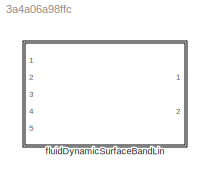
MODEL slx_3a4a06a98ffc
KIND library
CONFIG AbsTol = auto
CONFIG EnableMultiTasking = off
CONFIG FixedStep = auto
CONFIG MaxStep = auto
CONFIG MinStep = auto
CONFIG RelTol = 1e-3
CONFIG SampleTimeConstraint = Unconstrained
CONFIG Solver = VariableStepAuto
CONFIG SolverName = VariableStepAuto
CONFIG StartTime = 0.0
CONFIG StopTime = 10.0
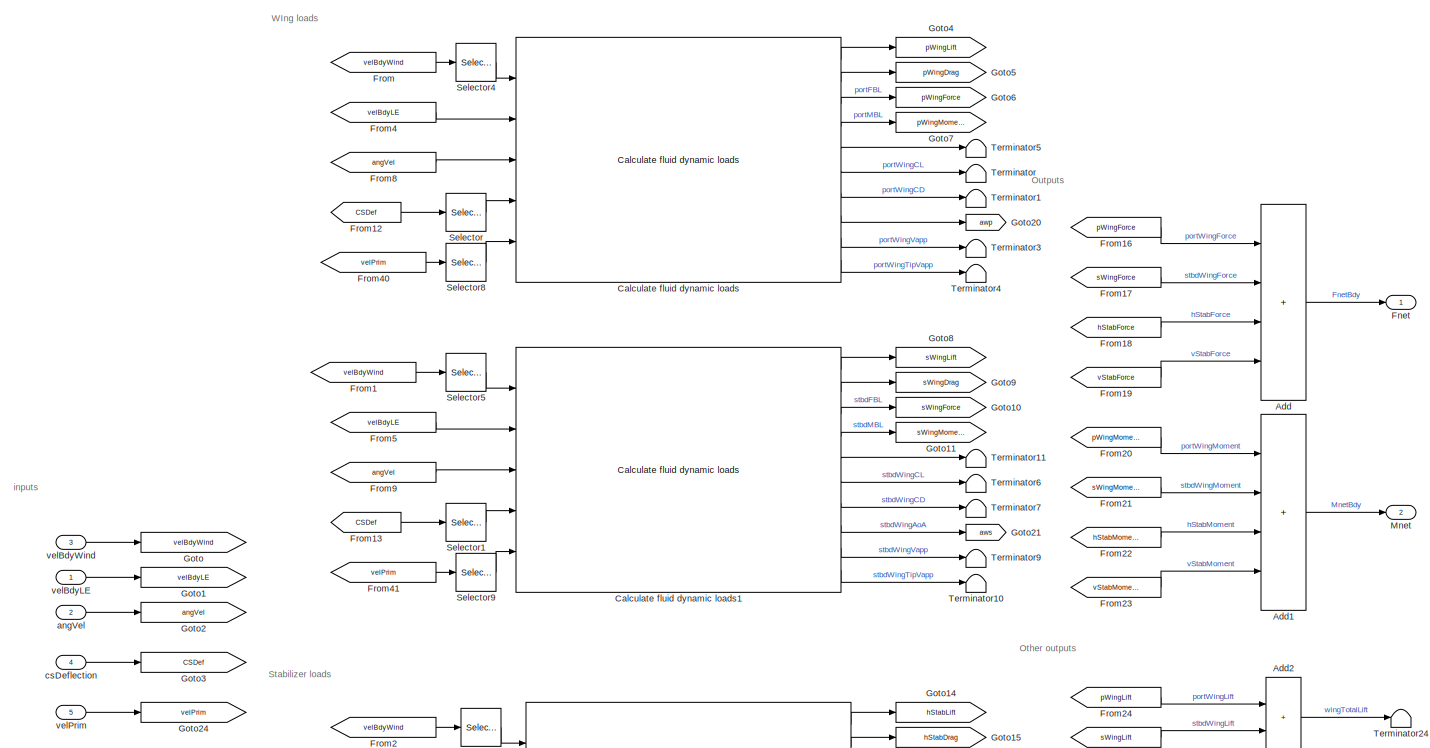
[diagram: fluidDynamicSurfaceBandLin - part 1/2, full width, top band]
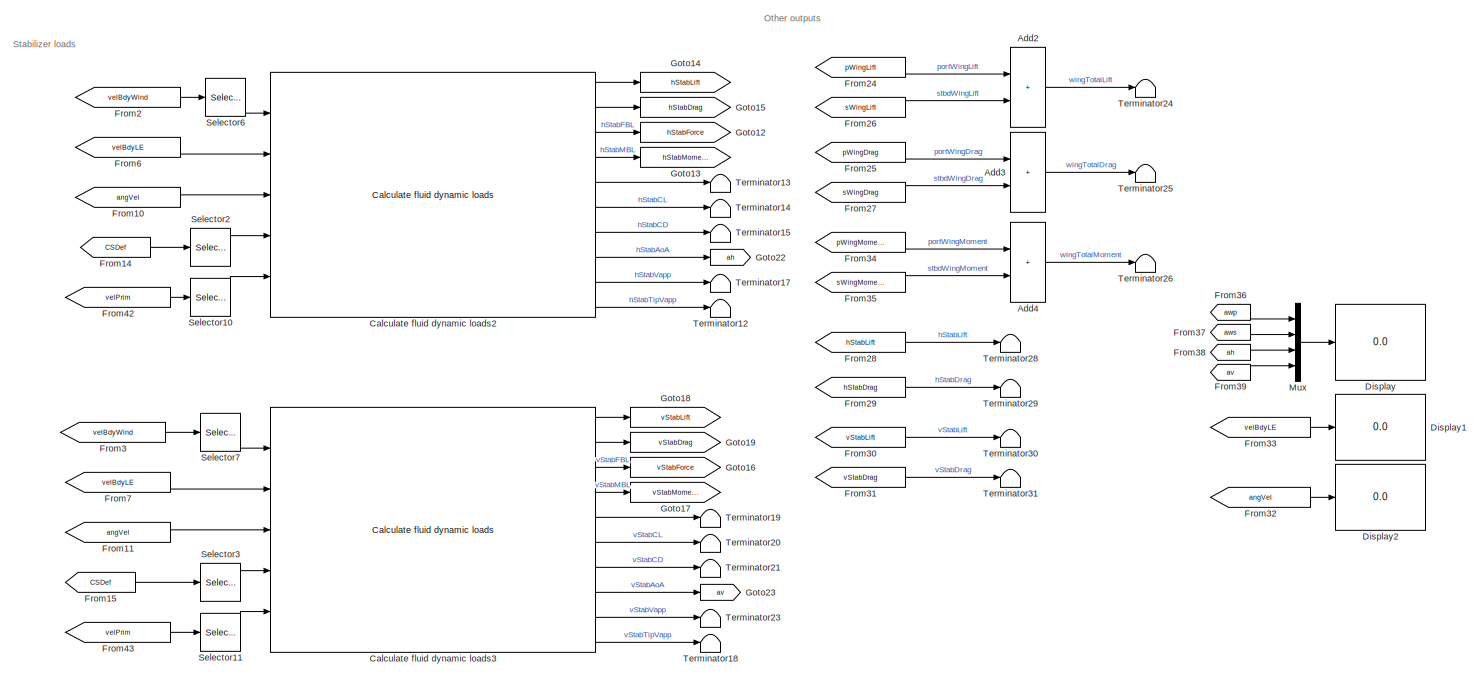
[diagram: fluidDynamicSurfaceBandLin - part 2/2, full width, bottom band]
BLOCK [SubSystem] fluidDynamicSurfaceBandLin
  MinAlgLoopOccurrences = on
  Ports = [5, 2]
  RequestExecContextInheritance = off
BLOCK [Sum] fluidDynamicSurfaceBandLin/Add
  IconShape = rectangular
  Inputs = ++++
  Ports = [4, 1]
BLOCK [Sum] fluidDynamicSurfaceBandLin/Add1
  IconShape = rectangular
  Inputs = ++++
  Ports = [4, 1]
BLOCK [Sum] fluidDynamicSurfaceBandLin/Add2
  IconShape = rectangular
  Ports = [2, 1]
BLOCK [Sum] fluidDynamicSurfaceBandLin/Add3
  IconShape = rectangular
  Ports = [2, 1]
BLOCK [Sum] fluidDynamicSurfaceBandLin/Add4
  IconShape = rectangular
  Ports = [2, 1]
BLOCK [Reference] fluidDynamicSurfaceBandLin/Calculate fluid dynamic loads  REF=calcFluidDynamicLoadsBandLin/Calculate fluid dynamic loads
  Ports = [5, 10]
  SourceBlock = calcFluidDynamicLoadsBandLin/Calculate fluid dynamic loads
BLOCK [Reference] fluidDynamicSurfaceBandLin/Calculate fluid dynamic loads1  REF=calcFluidDynamicLoadsBandLin/Calculate fluid dynamic loads
  Ports = [5, 10]
  SourceBlock = calcFluidDynamicLoadsBandLin/Calculate fluid dynamic loads
BLOCK [Reference] fluidDynamicSurfaceBandLin/Calculate fluid dynamic loads2  REF=calcFluidDynamicLoadsBandLin/Calculate fluid dynamic loads
  Ports = [5, 10]
  SourceBlock = calcFluidDynamicLoadsBandLin/Calculate fluid dynamic loads
BLOCK [Reference] fluidDynamicSurfaceBandLin/Calculate fluid dynamic loads3  REF=calcFluidDynamicLoadsBandLin/Calculate fluid dynamic loads
  Ports = [5, 10]
  SourceBlock = calcFluidDynamicLoadsBandLin/Calculate fluid dynamic loads
BLOCK [Display] fluidDynamicSurfaceBandLin/Display
  Decimation = 1
  Ports = [1]
BLOCK [Display] fluidDynamicSurfaceBandLin/Display1
  Decimation = 1
  Ports = [1]
BLOCK [Display] fluidDynamicSurfaceBandLin/Display2
  Decimation = 1
  Ports = [1]
BLOCK [Outport] fluidDynamicSurfaceBandLin/Fnet
BLOCK [From] fluidDynamicSurfaceBandLin/From
  GotoTag = velBdyWind
BLOCK [From] fluidDynamicSurfaceBandLin/From1
  GotoTag = velBdyWind
BLOCK [From] fluidDynamicSurfaceBandLin/From10
  GotoTag = angVel
BLOCK [From] fluidDynamicSurfaceBandLin/From11
  GotoTag = angVel
BLOCK [From] fluidDynamicSurfaceBandLin/From12
  GotoTag = CSDef
BLOCK [From] fluidDynamicSurfaceBandLin/From13
  GotoTag = CSDef
BLOCK [From] fluidDynamicSurfaceBandLin/From14
  GotoTag = CSDef
BLOCK [From] fluidDynamicSurfaceBandLin/From15
  GotoTag = CSDef
BLOCK [From] fluidDynamicSurfaceBandLin/From16
  GotoTag = pWingForce
BLOCK [From] fluidDynamicSurfaceBandLin/From17
  GotoTag = sWingForce
BLOCK [From] fluidDynamicSurfaceBandLin/From18
  GotoTag = hStabForce
BLOCK [From] fluidDynamicSurfaceBandLin/From19
  GotoTag = vStabForce
BLOCK [From] fluidDynamicSurfaceBandLin/From2
  GotoTag = velBdyWind
BLOCK [From] fluidDynamicSurfaceBandLin/From20
  GotoTag = pWingMoment
BLOCK [From] fluidDynamicSurfaceBandLin/From21
  GotoTag = sWingMoment
BLOCK [From] fluidDynamicSurfaceBandLin/From22
  GotoTag = hStabMoment
BLOCK [From] fluidDynamicSurfaceBandLin/From23
  GotoTag = vStabMoment
BLOCK [From] fluidDynamicSurfaceBandLin/From24
  GotoTag = pWingLift
BLOCK [From] fluidDynamicSurfaceBandLin/From25
  GotoTag = pWingDrag
BLOCK [From] fluidDynamicSurfaceBandLin/From26
  GotoTag = sWingLift
BLOCK [From] fluidDynamicSurfaceBandLin/From27
  GotoTag = sWingDrag
BLOCK [From] fluidDynamicSurfaceBandLin/From28
  GotoTag = hStabLift
BLOCK [From] fluidDynamicSurfaceBandLin/From29
  GotoTag = hStabDrag
BLOCK [From] fluidDynamicSurfaceBandLin/From3
  GotoTag = velBdyWind
BLOCK [From] fluidDynamicSurfaceBandLin/From30
  GotoTag = vStabLift
BLOCK [From] fluidDynamicSurfaceBandLin/From31
  GotoTag = vStabDrag
BLOCK [From] fluidDynamicSurfaceBandLin/From32
  GotoTag = angVel
BLOCK [From] fluidDynamicSurfaceBandLin/From33
  GotoTag = velBdyLE
BLOCK [From] fluidDynamicSurfaceBandLin/From34
  GotoTag = pWingMoment
BLOCK [From] fluidDynamicSurfaceBandLin/From35
  GotoTag = sWingMoment
BLOCK [From] fluidDynamicSurfaceBandLin/From36
  GotoTag = awp
BLOCK [From] fluidDynamicSurfaceBandLin/From37
  GotoTag = aws
BLOCK [From] fluidDynamicSurfaceBandLin/From38
  GotoTag = ah
BLOCK [From] fluidDynamicSurfaceBandLin/From39
  GotoTag = av
BLOCK [From] fluidDynamicSurfaceBandLin/From4
  GotoTag = velBdyLE
BLOCK [From] fluidDynamicSurfaceBandLin/From40
  GotoTag = velPrim
BLOCK [From] fluidDynamicSurfaceBandLin/From41
  GotoTag = velPrim
BLOCK [From] fluidDynamicSurfaceBandLin/From42
  GotoTag = velPrim
BLOCK [From] fluidDynamicSurfaceBandLin/From43
  GotoTag = velPrim
BLOCK [From] fluidDynamicSurfaceBandLin/From5
  GotoTag = velBdyLE
BLOCK [From] fluidDynamicSurfaceBandLin/From6
  GotoTag = velBdyLE
BLOCK [From] fluidDynamicSurfaceBandLin/From7
  GotoTag = velBdyLE
BLOCK [From] fluidDynamicSurfaceBandLin/From8
  GotoTag = angVel
BLOCK [From] fluidDynamicSurfaceBandLin/From9
  GotoTag = angVel
BLOCK [Goto] fluidDynamicSurfaceBandLin/Goto
  GotoTag = velBdyWind
BLOCK [Goto] fluidDynamicSurfaceBandLin/Goto1
  GotoTag = velBdyLE
BLOCK [Goto] fluidDynamicSurfaceBandLin/Goto10
  GotoTag = sWingForce
BLOCK [Goto] fluidDynamicSurfaceBandLin/Goto11
  GotoTag = sWingMoment
BLOCK [Goto] fluidDynamicSurfaceBandLin/Goto12
  GotoTag = hStabForce
BLOCK [Goto] fluidDynamicSurfaceBandLin/Goto13
  GotoTag = hStabMoment
BLOCK [Goto] fluidDynamicSurfaceBandLin/Goto14
  GotoTag = hStabLift
BLOCK [Goto] fluidDynamicSurfaceBandLin/Goto15
  GotoTag = hStabDrag
BLOCK [Goto] fluidDynamicSurfaceBandLin/Goto16
  GotoTag = vStabForce
BLOCK [Goto] fluidDynamicSurfaceBandLin/Goto17
  GotoTag = vStabMoment
BLOCK [Goto] fluidDynamicSurfaceBandLin/Goto18
  GotoTag = vStabLift
BLOCK [Goto] fluidDynamicSurfaceBandLin/Goto19
  GotoTag = vStabDrag
BLOCK [Goto] fluidDynamicSurfaceBandLin/Goto2
  GotoTag = angVel
BLOCK [Goto] fluidDynamicSurfaceBandLin/Goto20
  GotoTag = awp
BLOCK [Goto] fluidDynamicSurfaceBandLin/Goto21
  GotoTag = aws
BLOCK [Goto] fluidDynamicSurfaceBandLin/Goto22
  GotoTag = ah
BLOCK [Goto] fluidDynamicSurfaceBandLin/Goto23
  GotoTag = av
BLOCK [Goto] fluidDynamicSurfaceBandLin/Goto24
  GotoTag = velPrim
BLOCK [Goto] fluidDynamicSurfaceBandLin/Goto3
  GotoTag = CSDef
BLOCK [Goto] fluidDynamicSurfaceBandLin/Goto4
  GotoTag = pWingLift
BLOCK [Goto] fluidDynamicSurfaceBandLin/Goto5
  GotoTag = pWingDrag
BLOCK [Goto] fluidDynamicSurfaceBandLin/Goto6
  GotoTag = pWingForce
BLOCK [Goto] fluidDynamicSurfaceBandLin/Goto7
  GotoTag = pWingMoment
BLOCK [Goto] fluidDynamicSurfaceBandLin/Goto8
  GotoTag = sWingLift
BLOCK [Goto] fluidDynamicSurfaceBandLin/Goto9
  GotoTag = sWingDrag
BLOCK [Outport] fluidDynamicSurfaceBandLin/Mnet
  Port = 2
BLOCK [Mux] fluidDynamicSurfaceBandLin/Mux
  DisplayOption = bar
  Ports = [4, 1]
BLOCK [Selector] fluidDynamicSurfaceBandLin/Selector
  IndexOptions = Index vector (dialog)
  Indices = 1
  InputPortWidth = 4
  OutputSizes = 1
  Ports = [1, 1]
BLOCK [Selector] fluidDynamicSurfaceBandLin/Selector1
  IndexOptions = Index vector (dialog)
  Indices = 2
  InputPortWidth = 4
  OutputSizes = 1
  Ports = [1, 1]
BLOCK [Selector] fluidDynamicSurfaceBandLin/Selector10
  IndexOptions = Select all,Index vector (dialog)
  Indices = 1,3
  InputPortWidth = 4
  NumberOfDimensions = 2
  OutputSizes = 1,1
  Ports = [1, 1]
BLOCK [Selector] fluidDynamicSurfaceBandLin/Selector11
  IndexOptions = Select all,Index vector (dialog)
  Indices = 1,4
  InputPortWidth = 4
  NumberOfDimensions = 2
  OutputSizes = 1,1
  Ports = [1, 1]
BLOCK [Selector] fluidDynamicSurfaceBandLin/Selector2
  IndexOptions = Index vector (dialog)
  Indices = 3
  InputPortWidth = 4
  OutputSizes = 1
  Ports = [1, 1]
BLOCK [Selector] fluidDynamicSurfaceBandLin/Selector3
  IndexOptions = Index vector (dialog)
  Indices = 4
  InputPortWidth = 4
  OutputSizes = 1
  Ports = [1, 1]
BLOCK [Selector] fluidDynamicSurfaceBandLin/Selector4
  IndexOptions = Select all,Index vector (dialog)
  Indices = 1,1
  InputPortWidth = 4
  NumberOfDimensions = 2
  OutputSizes = 1,1
  Ports = [1, 1]
BLOCK [Selector] fluidDynamicSurfaceBandLin/Selector5
  IndexOptions = Select all,Index vector (dialog)
  Indices = 1,2
  InputPortWidth = 4
  NumberOfDimensions = 2
  OutputSizes = 1,1
  Ports = [1, 1]
BLOCK [Selector] fluidDynamicSurfaceBandLin/Selector6
  IndexOptions = Select all,Index vector (dialog)
  Indices = 1,3
  InputPortWidth = 4
  NumberOfDimensions = 2
  OutputSizes = 1,1
  Ports = [1, 1]
BLOCK [Selector] fluidDynamicSurfaceBandLin/Selector7
  IndexOptions = Select all,Index vector (dialog)
  Indices = 1,4
  InputPortWidth = 4
  NumberOfDimensions = 2
  OutputSizes = 1,1
  Ports = [1, 1]
BLOCK [Selector] fluidDynamicSurfaceBandLin/Selector8
  IndexOptions = Select all,Index vector (dialog)
  Indices = 1,1
  InputPortWidth = 4
  NumberOfDimensions = 2
  OutputSizes = 1,1
  Ports = [1, 1]
BLOCK [Selector] fluidDynamicSurfaceBandLin/Selector9
  IndexOptions = Select all,Index vector (dialog)
  Indices = 1,2
  InputPortWidth = 4
  NumberOfDimensions = 2
  OutputSizes = 1,1
  Ports = [1, 1]
BLOCK [Terminator] fluidDynamicSurfaceBandLin/Terminator
BLOCK [Terminator] fluidDynamicSurfaceBandLin/Terminator1
BLOCK [Terminator] fluidDynamicSurfaceBandLin/Terminator10
BLOCK [Terminator] fluidDynamicSurfaceBandLin/Terminator11
BLOCK [Terminator] fluidDynamicSurfaceBandLin/Terminator12
BLOCK [Terminator] fluidDynamicSurfaceBandLin/Terminator13
BLOCK [Terminator] fluidDynamicSurfaceBandLin/Terminator14
BLOCK [Terminator] fluidDynamicSurfaceBandLin/Terminator15
BLOCK [Terminator] fluidDynamicSurfaceBandLin/Terminator17
BLOCK [Terminator] fluidDynamicSurfaceBandLin/Terminator18
BLOCK [Terminator] fluidDynamicSurfaceBandLin/Terminator19
BLOCK [Terminator] fluidDynamicSurfaceBandLin/Terminator20
BLOCK [Terminator] fluidDynamicSurfaceBandLin/Terminator21
BLOCK [Terminator] fluidDynamicSurfaceBandLin/Terminator23
BLOCK [Terminator] fluidDynamicSurfaceBandLin/Terminator24
BLOCK [Terminator] fluidDynamicSurfaceBandLin/Terminator25
BLOCK [Terminator] fluidDynamicSurfaceBandLin/Terminator26
BLOCK [Terminator] fluidDynamicSurfaceBandLin/Terminator28
BLOCK [Terminator] fluidDynamicSurfaceBandLin/Terminator29
BLOCK [Terminator] fluidDynamicSurfaceBandLin/Terminator3
BLOCK [Terminator] fluidDynamicSurfaceBandLin/Terminator30
BLOCK [Terminator] fluidDynamicSurfaceBandLin/Terminator31
BLOCK [Terminator] fluidDynamicSurfaceBandLin/Terminator4
BLOCK [Terminator] fluidDynamicSurfaceBandLin/Terminator5
BLOCK [Terminator] fluidDynamicSurfaceBandLin/Terminator6
BLOCK [Terminator] fluidDynamicSurfaceBandLin/Terminator7
BLOCK [Terminator] fluidDynamicSurfaceBandLin/Terminator9
BLOCK [Inport] fluidDynamicSurfaceBandLin/angVel
  Port = 2
BLOCK [Inport] fluidDynamicSurfaceBandLin/csDeflection
  Port = 4
BLOCK [Inport] fluidDynamicSurfaceBandLin/velBdyLE
BLOCK [Inport] fluidDynamicSurfaceBandLin/velBdyWind
  Port = 3
BLOCK [Inport] fluidDynamicSurfaceBandLin/velPrim
  Port = 5
ANNOTATION fluidDynamicSurfaceBandLin: Other outputs
ANNOTATION fluidDynamicSurfaceBandLin: Outputs
ANNOTATION fluidDynamicSurfaceBandLin: Stabilizer loads
ANNOTATION fluidDynamicSurfaceBandLin: WIng loads
ANNOTATION fluidDynamicSurfaceBandLin: inputs
LINE fluidDynamicSurfaceBandLin/Add1:1 -> fluidDynamicSurfaceBandLin/Mnet:1
LINE fluidDynamicSurfaceBandLin/Add2:1 -> fluidDynamicSurfaceBandLin/Terminator24:1
LINE fluidDynamicSurfaceBandLin/Add3:1 -> fluidDynamicSurfaceBandLin/Terminator25:1
LINE fluidDynamicSurfaceBandLin/Add4:1 -> fluidDynamicSurfaceBandLin/Terminator26:1
LINE fluidDynamicSurfaceBandLin/Add:1 -> fluidDynamicSurfaceBandLin/Fnet:1
LINE fluidDynamicSurfaceBandLin/Calculate fluid dynamic loads1:1 -> fluidDynamicSurfaceBandLin/Goto8:1
LINE fluidDynamicSurfaceBandLin/Calculate fluid dynamic loads1:10 -> fluidDynamicSurfaceBandLin/Terminator10:1
LINE fluidDynamicSurfaceBandLin/Calculate fluid dynamic loads1:2 -> fluidDynamicSurfaceBandLin/Goto9:1
LINE fluidDynamicSurfaceBandLin/Calculate fluid dynamic loads1:3 -> fluidDynamicSurfaceBandLin/Goto10:1
LINE fluidDynamicSurfaceBandLin/Calculate fluid dynamic loads1:4 -> fluidDynamicSurfaceBandLin/Goto11:1
LINE fluidDynamicSurfaceBandLin/Calculate fluid dynamic loads1:5 -> fluidDynamicSurfaceBandLin/Terminator11:1
LINE fluidDynamicSurfaceBandLin/Calculate fluid dynamic loads1:6 -> fluidDynamicSurfaceBandLin/Terminator6:1
LINE fluidDynamicSurfaceBandLin/Calculate fluid dynamic loads1:7 -> fluidDynamicSurfaceBandLin/Terminator7:1
LINE fluidDynamicSurfaceBandLin/Calculate fluid dynamic loads1:8 -> fluidDynamicSurfaceBandLin/Goto21:1
LINE fluidDynamicSurfaceBandLin/Calculate fluid dynamic loads1:9 -> fluidDynamicSurfaceBandLin/Terminator9:1
LINE fluidDynamicSurfaceBandLin/Calculate fluid dynamic loads2:1 -> fluidDynamicSurfaceBandLin/Goto14:1
LINE fluidDynamicSurfaceBandLin/Calculate fluid dynamic loads2:10 -> fluidDynamicSurfaceBandLin/Terminator12:1
LINE fluidDynamicSurfaceBandLin/Calculate fluid dynamic loads2:2 -> fluidDynamicSurfaceBandLin/Goto15:1
LINE fluidDynamicSurfaceBandLin/Calculate fluid dynamic loads2:3 -> fluidDynamicSurfaceBandLin/Goto12:1
LINE fluidDynamicSurfaceBandLin/Calculate fluid dynamic loads2:4 -> fluidDynamicSurfaceBandLin/Goto13:1
LINE fluidDynamicSurfaceBandLin/Calculate fluid dynamic loads2:5 -> fluidDynamicSurfaceBandLin/Terminator13:1
LINE fluidDynamicSurfaceBandLin/Calculate fluid dynamic loads2:6 -> fluidDynamicSurfaceBandLin/Terminator14:1
LINE fluidDynamicSurfaceBandLin/Calculate fluid dynamic loads2:7 -> fluidDynamicSurfaceBandLin/Terminator15:1
LINE fluidDynamicSurfaceBandLin/Calculate fluid dynamic loads2:8 -> fluidDynamicSurfaceBandLin/Goto22:1
LINE fluidDynamicSurfaceBandLin/Calculate fluid dynamic loads2:9 -> fluidDynamicSurfaceBandLin/Terminator17:1
LINE fluidDynamicSurfaceBandLin/Calculate fluid dynamic loads3:1 -> fluidDynamicSurfaceBandLin/Goto18:1
LINE fluidDynamicSurfaceBandLin/Calculate fluid dynamic loads3:10 -> fluidDynamicSurfaceBandLin/Terminator18:1
LINE fluidDynamicSurfaceBandLin/Calculate fluid dynamic loads3:2 -> fluidDynamicSurfaceBandLin/Goto19:1
LINE fluidDynamicSurfaceBandLin/Calculate fluid dynamic loads3:3 -> fluidDynamicSurfaceBandLin/Goto16:1
LINE fluidDynamicSurfaceBandLin/Calculate fluid dynamic loads3:4 -> fluidDynamicSurfaceBandLin/Goto17:1
LINE fluidDynamicSurfaceBandLin/Calculate fluid dynamic loads3:5 -> fluidDynamicSurfaceBandLin/Terminator19:1
LINE fluidDynamicSurfaceBandLin/Calculate fluid dynamic loads3:6 -> fluidDynamicSurfaceBandLin/Terminator20:1
LINE fluidDynamicSurfaceBandLin/Calculate fluid dynamic loads3:7 -> fluidDynamicSurfaceBandLin/Terminator21:1
LINE fluidDynamicSurfaceBandLin/Calculate fluid dynamic loads3:8 -> fluidDynamicSurfaceBandLin/Goto23:1
LINE fluidDynamicSurfaceBandLin/Calculate fluid dynamic loads3:9 -> fluidDynamicSurfaceBandLin/Terminator23:1
LINE fluidDynamicSurfaceBandLin/Calculate fluid dynamic loads:1 -> fluidDynamicSurfaceBandLin/Goto4:1
LINE fluidDynamicSurfaceBandLin/Calculate fluid dynamic loads:10 -> fluidDynamicSurfaceBandLin/Terminator4:1
LINE fluidDynamicSurfaceBandLin/Calculate fluid dynamic loads:2 -> fluidDynamicSurfaceBandLin/Goto5:1
LINE fluidDynamicSurfaceBandLin/Calculate fluid dynamic loads:3 -> fluidDynamicSurfaceBandLin/Goto6:1
LINE fluidDynamicSurfaceBandLin/Calculate fluid dynamic loads:4 -> fluidDynamicSurfaceBandLin/Goto7:1
LINE fluidDynamicSurfaceBandLin/Calculate fluid dynamic loads:5 -> fluidDynamicSurfaceBandLin/Terminator5:1
LINE fluidDynamicSurfaceBandLin/Calculate fluid dynamic loads:6 -> fluidDynamicSurfaceBandLin/Terminator:1
LINE fluidDynamicSurfaceBandLin/Calculate fluid dynamic loads:7 -> fluidDynamicSurfaceBandLin/Terminator1:1
LINE fluidDynamicSurfaceBandLin/Calculate fluid dynamic loads:8 -> fluidDynamicSurfaceBandLin/Goto20:1
LINE fluidDynamicSurfaceBandLin/Calculate fluid dynamic loads:9 -> fluidDynamicSurfaceBandLin/Terminator3:1
LINE fluidDynamicSurfaceBandLin/From10:1 -> fluidDynamicSurfaceBandLin/Calculate fluid dynamic loads2:3
LINE fluidDynamicSurfaceBandLin/From11:1 -> fluidDynamicSurfaceBandLin/Calculate fluid dynamic loads3:3
LINE fluidDynamicSurfaceBandLin/From12:1 -> fluidDynamicSurfaceBandLin/Selector:1
LINE fluidDynamicSurfaceBandLin/From13:1 -> fluidDynamicSurfaceBandLin/Selector1:1
LINE fluidDynamicSurfaceBandLin/From14:1 -> fluidDynamicSurfaceBandLin/Selector2:1
LINE fluidDynamicSurfaceBandLin/From15:1 -> fluidDynamicSurfaceBandLin/Selector3:1
LINE fluidDynamicSurfaceBandLin/From16:1 -> fluidDynamicSurfaceBandLin/Add:1
LINE fluidDynamicSurfaceBandLin/From17:1 -> fluidDynamicSurfaceBandLin/Add:2
LINE fluidDynamicSurfaceBandLin/From18:1 -> fluidDynamicSurfaceBandLin/Add:3
LINE fluidDynamicSurfaceBandLin/From19:1 -> fluidDynamicSurfaceBandLin/Add:4
LINE fluidDynamicSurfaceBandLin/From1:1 -> fluidDynamicSurfaceBandLin/Selector5:1
LINE fluidDynamicSurfaceBandLin/From20:1 -> fluidDynamicSurfaceBandLin/Add1:1
LINE fluidDynamicSurfaceBandLin/From21:1 -> fluidDynamicSurfaceBandLin/Add1:2
LINE fluidDynamicSurfaceBandLin/From22:1 -> fluidDynamicSurfaceBandLin/Add1:3
LINE fluidDynamicSurfaceBandLin/From23:1 -> fluidDynamicSurfaceBandLin/Add1:4
LINE fluidDynamicSurfaceBandLin/From24:1 -> fluidDynamicSurfaceBandLin/Add2:1
LINE fluidDynamicSurfaceBandLin/From25:1 -> fluidDynamicSurfaceBandLin/Add3:1
LINE fluidDynamicSurfaceBandLin/From26:1 -> fluidDynamicSurfaceBandLin/Add2:2
LINE fluidDynamicSurfaceBandLin/From27:1 -> fluidDynamicSurfaceBandLin/Add3:2
LINE fluidDynamicSurfaceBandLin/From28:1 -> fluidDynamicSurfaceBandLin/Terminator28:1
LINE fluidDynamicSurfaceBandLin/From29:1 -> fluidDynamicSurfaceBandLin/Terminator29:1
LINE fluidDynamicSurfaceBandLin/From2:1 -> fluidDynamicSurfaceBandLin/Selector6:1
LINE fluidDynamicSurfaceBandLin/From30:1 -> fluidDynamicSurfaceBandLin/Terminator30:1
LINE fluidDynamicSurfaceBandLin/From31:1 -> fluidDynamicSurfaceBandLin/Terminator31:1
LINE fluidDynamicSurfaceBandLin/From32:1 -> fluidDynamicSurfaceBandLin/Display2:1
LINE fluidDynamicSurfaceBandLin/From33:1 -> fluidDynamicSurfaceBandLin/Display1:1
LINE fluidDynamicSurfaceBandLin/From34:1 -> fluidDynamicSurfaceBandLin/Add4:1
LINE fluidDynamicSurfaceBandLin/From35:1 -> fluidDynamicSurfaceBandLin/Add4:2
LINE fluidDynamicSurfaceBandLin/From36:1 -> fluidDynamicSurfaceBandLin/Mux:1
LINE fluidDynamicSurfaceBandLin/From37:1 -> fluidDynamicSurfaceBandLin/Mux:2
LINE fluidDynamicSurfaceBandLin/From38:1 -> fluidDynamicSurfaceBandLin/Mux:3
LINE fluidDynamicSurfaceBandLin/From39:1 -> fluidDynamicSurfaceBandLin/Mux:4
LINE fluidDynamicSurfaceBandLin/From3:1 -> fluidDynamicSurfaceBandLin/Selector7:1
LINE fluidDynamicSurfaceBandLin/From40:1 -> fluidDynamicSurfaceBandLin/Selector8:1
LINE fluidDynamicSurfaceBandLin/From41:1 -> fluidDynamicSurfaceBandLin/Selector9:1
LINE fluidDynamicSurfaceBandLin/From42:1 -> fluidDynamicSurfaceBandLin/Selector10:1
LINE fluidDynamicSurfaceBandLin/From43:1 -> fluidDynamicSurfaceBandLin/Selector11:1
LINE fluidDynamicSurfaceBandLin/From4:1 -> fluidDynamicSurfaceBandLin/Calculate fluid dynamic loads:2
LINE fluidDynamicSurfaceBandLin/From5:1 -> fluidDynamicSurfaceBandLin/Calculate fluid dynamic loads1:2
LINE fluidDynamicSurfaceBandLin/From6:1 -> fluidDynamicSurfaceBandLin/Calculate fluid dynamic loads2:2
LINE fluidDynamicSurfaceBandLin/From7:1 -> fluidDynamicSurfaceBandLin/Calculate fluid dynamic loads3:2
LINE fluidDynamicSurfaceBandLin/From8:1 -> fluidDynamicSurfaceBandLin/Calculate fluid dynamic loads:3
LINE fluidDynamicSurfaceBandLin/From9:1 -> fluidDynamicSurfaceBandLin/Calculate fluid dynamic loads1:3
LINE fluidDynamicSurfaceBandLin/From:1 -> fluidDynamicSurfaceBandLin/Selector4:1
LINE fluidDynamicSurfaceBandLin/Mux:1 -> fluidDynamicSurfaceBandLin/Display:1
LINE fluidDynamicSurfaceBandLin/Selector10:1 -> fluidDynamicSurfaceBandLin/Calculate fluid dynamic loads2:5
LINE fluidDynamicSurfaceBandLin/Selector11:1 -> fluidDynamicSurfaceBandLin/Calculate fluid dynamic loads3:5
LINE fluidDynamicSurfaceBandLin/Selector1:1 -> fluidDynamicSurfaceBandLin/Calculate fluid dynamic loads1:4
LINE fluidDynamicSurfaceBandLin/Selector2:1 -> fluidDynamicSurfaceBandLin/Calculate fluid dynamic loads2:4
LINE fluidDynamicSurfaceBandLin/Selector3:1 -> fluidDynamicSurfaceBandLin/Calculate fluid dynamic loads3:4
LINE fluidDynamicSurfaceBandLin/Selector4:1 -> fluidDynamicSurfaceBandLin/Calculate fluid dynamic loads:1
LINE fluidDynamicSurfaceBandLin/Selector5:1 -> fluidDynamicSurfaceBandLin/Calculate fluid dynamic loads1:1
LINE fluidDynamicSurfaceBandLin/Selector6:1 -> fluidDynamicSurfaceBandLin/Calculate fluid dynamic loads2:1
LINE fluidDynamicSurfaceBandLin/Selector7:1 -> fluidDynamicSurfaceBandLin/Calculate fluid dynamic loads3:1
LINE fluidDynamicSurfaceBandLin/Selector8:1 -> fluidDynamicSurfaceBandLin/Calculate fluid dynamic loads:5
LINE fluidDynamicSurfaceBandLin/Selector9:1 -> fluidDynamicSurfaceBandLin/Calculate fluid dynamic loads1:5
LINE fluidDynamicSurfaceBandLin/Selector:1 -> fluidDynamicSurfaceBandLin/Calculate fluid dynamic loads:4
LINE fluidDynamicSurfaceBandLin/angVel:1 -> fluidDynamicSurfaceBandLin/Goto2:1
LINE fluidDynamicSurfaceBandLin/csDeflection:1 -> fluidDynamicSurfaceBandLin/Goto3:1
LINE fluidDynamicSurfaceBandLin/velBdyLE:1 -> fluidDynamicSurfaceBandLin/Goto1:1
LINE fluidDynamicSurfaceBandLin/velBdyWind:1 -> fluidDynamicSurfaceBandLin/Goto:1
LINE fluidDynamicSurfaceBandLin/velPrim:1 -> fluidDynamicSurfaceBandLin/Goto24:1
